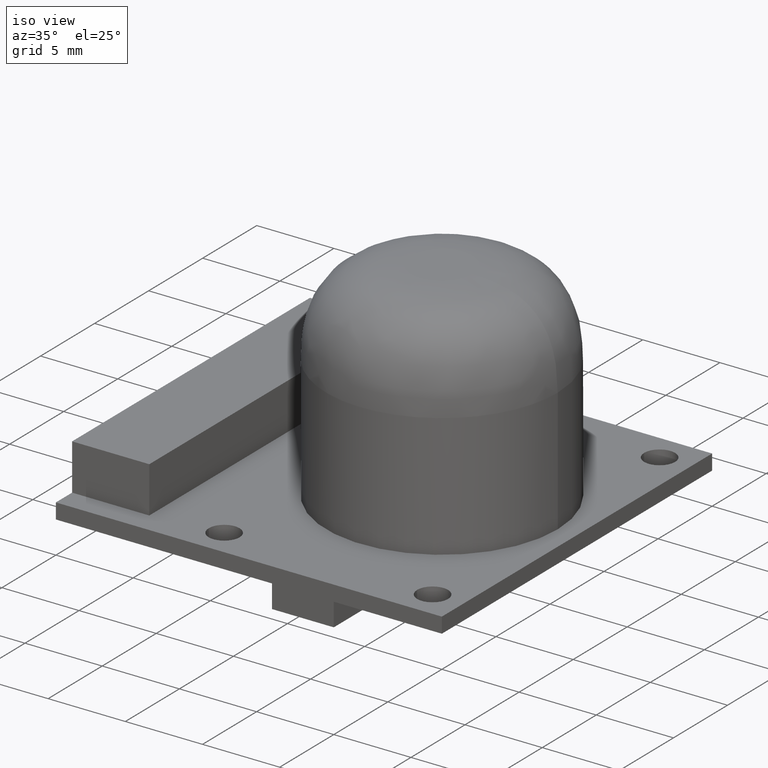
[diagram: clean part render]
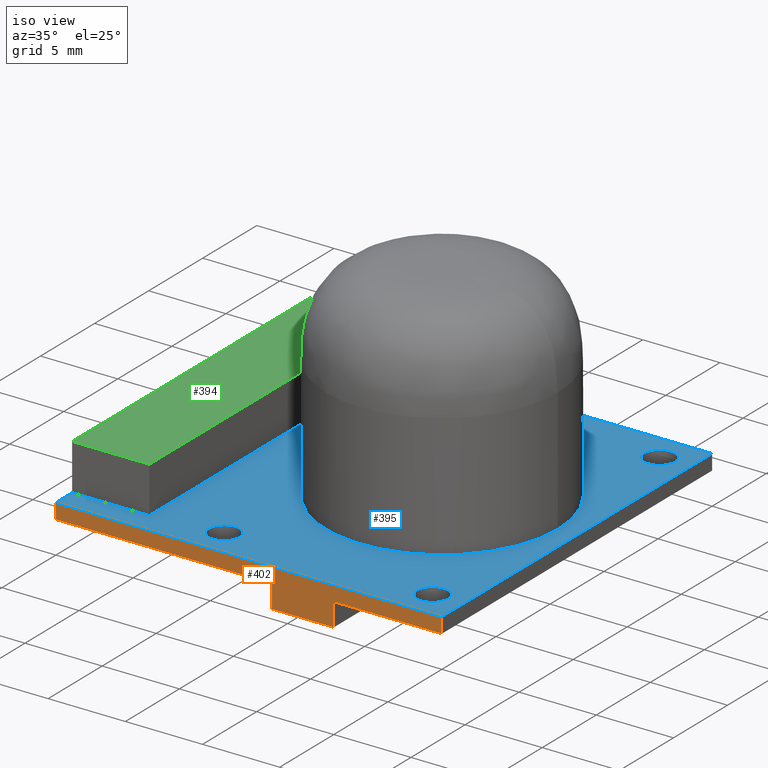
[diagram: same view with three faces highlighted in distinct colors, each labeled with its STEP entity id]
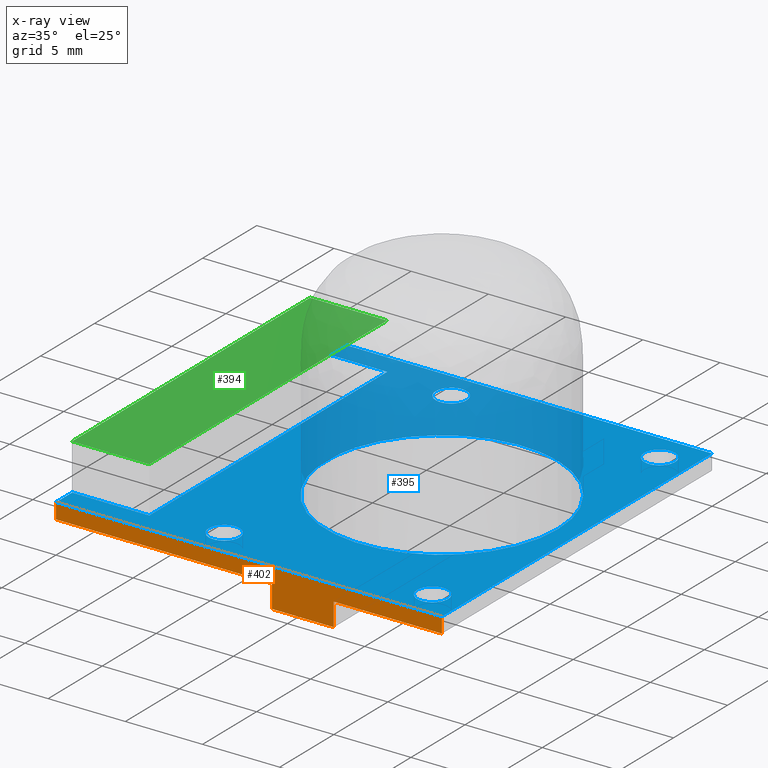
[diagram: x-ray of the same camera — body ghosted, the three highlighted faces saturated]
A machine part, iso view with three faces highlighted in distinct colors.
The next image is the same camera in x-ray (body ghosted, the three faces saturated) — at least one of them is partly hidden behind the body in this view.
Their STEP definitions:

[orange] entity #402 — the highlighted planar face has unit normal (0, -1, 0).
#36=LINE('',#706,#77);
#40=LINE('',#713,#81);
#43=LINE('',#719,#84);
#44=LINE('',#722,#85);
#59=LINE('',#757,#100);
#71=LINE('',#791,#112);
#72=LINE('',#793,#113);
#73=LINE('',#794,#114);
#77=VECTOR('',#461,10.);
#81=VECTOR('',#467,10.);
#84=VECTOR('',#472,10.);
#85=VECTOR('',#475,10.);
#100=VECTOR('',#504,10.);
#112=VECTOR('',#540,10.);
#113=VECTOR('',#543,10.);
#114=VECTOR('',#544,10.);
#132=PLANE('',#445);
#153=FACE_OUTER_BOUND('',#181,.T.);
#181=EDGE_LOOP('',(#361,#362,#363,#364,#365,#366,#367,#368));
#194=VERTEX_POINT('',#703);
#195=VERTEX_POINT('',#705);
#197=VERTEX_POINT('',#711);
#199=VERTEX_POINT('',#717);
#200=VERTEX_POINT('',#721);
#212=VERTEX_POINT('',#754);
#213=VERTEX_POINT('',#756);
#223=VERTEX_POINT('',#789);
#231=EDGE_CURVE('',#194,#195,#36,.T.);
#235=EDGE_CURVE('',#197,#194,#40,.T.);
#238=EDGE_CURVE('',#199,#197,#43,.T.);
#239=EDGE_CURVE('',#200,#195,#44,.T.);
#256=EDGE_CURVE('',#212,#213,#59,.T.);
#274=EDGE_CURVE('',#223,#213,#71,.T.);
#275=EDGE_CURVE('',#199,#223,#72,.T.);
#276=EDGE_CURVE('',#200,#212,#73,.T.);
#361=ORIENTED_EDGE('',*,*,#239,.T.);
#362=ORIENTED_EDGE('',*,*,#231,.F.);
#363=ORIENTED_EDGE('',*,*,#235,.F.);
#364=ORIENTED_EDGE('',*,*,#238,.F.);
#365=ORIENTED_EDGE('',*,*,#275,.T.);
#366=ORIENTED_EDGE('',*,*,#274,.T.);
#367=ORIENTED_EDGE('',*,*,#256,.F.);
#368=ORIENTED_EDGE('',*,*,#276,.F.);
#402=ADVANCED_FACE('',(#153),#132,.T.);
#445=AXIS2_PLACEMENT_3D('',#792,#541,#542);
#461=DIRECTION('',(7.40148683083438E-16,0.,1.));
#467=DIRECTION('',(-1.,0.,0.));
#472=DIRECTION('',(0.,0.,-1.));
#475=DIRECTION('',(1.,0.,0.));
#504=DIRECTION('',(1.,0.,0.));
#540=DIRECTION('',(0.,0.,1.));
#541=DIRECTION('center_axis',(0.,-1.,0.));
#542=DIRECTION('ref_axis',(1.,0.,0.));
#543=DIRECTION('',(1.,0.,0.));
#544=DIRECTION('',(0.,0.,1.));
#703=CARTESIAN_POINT('',(14.0000000000016,0.,-1.5));
#705=CARTESIAN_POINT('',(14.0000000000016,0.,0.));
#706=CARTESIAN_POINT('',(14.0000000000016,0.,-1.5));
#711=CARTESIAN_POINT('',(18.0000000000016,0.,-1.5));
#713=CARTESIAN_POINT('',(18.0000000000016,0.,-1.5));
#717=CARTESIAN_POINT('',(18.0000000000016,0.,0.));
#719=CARTESIAN_POINT('',(18.0000000000016,0.,1.5));
#721=CARTESIAN_POINT('',(0.,0.,0.));
#722=CARTESIAN_POINT('',(0.,0.,0.));
#754=CARTESIAN_POINT('',(0.,0.,1.));
#756=CARTESIAN_POINT('',(25.,0.,1.));
#757=CARTESIAN_POINT('',(0.,0.,1.));
#789=CARTESIAN_POINT('',(25.,0.,0.));
#791=CARTESIAN_POINT('',(25.,0.,0.));
#792=CARTESIAN_POINT('Origin',(0.,0.,0.));
#793=CARTESIAN_POINT('',(0.,0.,0.));
#794=CARTESIAN_POINT('',(0.,0.,0.));

[blue] entity #395 — the highlighted planar face has unit normal (0, 0, 1).
#17=FACE_BOUND('',#170,.T.);
#18=FACE_BOUND('',#171,.T.);
#19=FACE_BOUND('',#172,.T.);
#20=FACE_BOUND('',#173,.T.);
#21=FACE_BOUND('',#174,.T.);
#24=CIRCLE('',#421,7.5);
#27=CIRCLE('',#433,1.);
#28=CIRCLE('',#434,1.);
#29=CIRCLE('',#435,1.);
#30=CIRCLE('',#436,1.);
#47=LINE('',#733,#88);
#51=LINE('',#741,#92);
#54=LINE('',#747,#95);
#58=LINE('',#755,#99);
#59=LINE('',#757,#100);
#60=LINE('',#759,#101);
#61=LINE('',#761,#102);
#62=LINE('',#762,#103);
#88=VECTOR('',#484,10.);
#92=VECTOR('',#490,10.);
#95=VECTOR('',#495,10.);
#99=VECTOR('',#503,10.);
#100=VECTOR('',#504,10.);
#101=VECTOR('',#505,10.);
#102=VECTOR('',#506,10.);
#103=VECTOR('',#507,10.);
#129=PLANE('',#432);
#146=FACE_OUTER_BOUND('',#169,.T.);
#169=EDGE_LOOP('',(#320,#321,#322,#323,#324,#325,#326,#327));
#170=EDGE_LOOP('',(#328));
#171=EDGE_LOOP('',(#329));
#172=EDGE_LOOP('',(#330));
#173=EDGE_LOOP('',(#331));
#174=EDGE_LOOP('',(#332));
#191=VERTEX_POINT('',#696);
#204=VERTEX_POINT('',#731);
#205=VERTEX_POINT('',#732);
#208=VERTEX_POINT('',#740);
#210=VERTEX_POINT('',#746);
#212=VERTEX_POINT('',#754);
#213=VERTEX_POINT('',#756);
#214=VERTEX_POINT('',#758);
#215=VERTEX_POINT('',#760);
#216=VERTEX_POINT('',#763);
#217=VERTEX_POINT('',#765);
#218=VERTEX_POINT('',#767);
#219=VERTEX_POINT('',#769);
#228=EDGE_CURVE('',#191,#191,#24,.T.);
#244=EDGE_CURVE('',#204,#205,#47,.T.);
#248=EDGE_CURVE('',#205,#208,#51,.T.);
#251=EDGE_CURVE('',#208,#210,#54,.T.);
#255=EDGE_CURVE('',#210,#212,#58,.T.);
#256=EDGE_CURVE('',#212,#213,#59,.T.);
#257=EDGE_CURVE('',#213,#214,#60,.T.);
#258=EDGE_CURVE('',#214,#215,#61,.T.);
#259=EDGE_CURVE('',#215,#204,#62,.T.);
#260=EDGE_CURVE('',#216,#216,#27,.T.);
#261=EDGE_CURVE('',#217,#217,#28,.T.);
#262=EDGE_CURVE('',#218,#218,#29,.T.);
#263=EDGE_CURVE('',#219,#219,#30,.T.);
#320=ORIENTED_EDGE('',*,*,#244,.T.);
#321=ORIENTED_EDGE('',*,*,#248,.T.);
#322=ORIENTED_EDGE('',*,*,#251,.T.);
#323=ORIENTED_EDGE('',*,*,#255,.T.);
#324=ORIENTED_EDGE('',*,*,#256,.T.);
#325=ORIENTED_EDGE('',*,*,#257,.T.);
#326=ORIENTED_EDGE('',*,*,#258,.T.);
#327=ORIENTED_EDGE('',*,*,#259,.T.);
#328=ORIENTED_EDGE('',*,*,#260,.T.);
#329=ORIENTED_EDGE('',*,*,#261,.T.);
#330=ORIENTED_EDGE('',*,*,#262,.T.);
#331=ORIENTED_EDGE('',*,*,#263,.T.);
#332=ORIENTED_EDGE('',*,*,#228,.T.);
#395=ADVANCED_FACE('',(#146,#17,#18,#19,#20,#21),#129,.T.);
#421=AXIS2_PLACEMENT_3D('',#698,#455,#456);
#432=AXIS2_PLACEMENT_3D('',#753,#501,#502);
#433=AXIS2_PLACEMENT_3D('',#764,#508,#509);
#434=AXIS2_PLACEMENT_3D('',#766,#510,#511);
#435=AXIS2_PLACEMENT_3D('',#768,#512,#513);
#436=AXIS2_PLACEMENT_3D('',#770,#514,#515);
#455=DIRECTION('center_axis',(0.,0.,-1.));
#456=DIRECTION('ref_axis',(-1.,0.,0.));
#484=DIRECTION('',(1.,0.,0.));
#490=DIRECTION('',(0.,-1.,0.));
#495=DIRECTION('',(-1.,0.,0.));
#501=DIRECTION('center_axis',(0.,0.,1.));
#502=DIRECTION('ref_axis',(1.,0.,0.));
#503=DIRECTION('',(0.,-1.,0.));
#504=DIRECTION('',(1.,0.,0.));
#505=DIRECTION('',(0.,1.,0.));
#506=DIRECTION('',(-1.,0.,0.));
#507=DIRECTION('',(0.,-1.,0.));
#508=DIRECTION('center_axis',(0.,0.,-1.));
#509=DIRECTION('ref_axis',(1.,0.,0.));
#510=DIRECTION('center_axis',(0.,0.,-1.));
#511=DIRECTION('ref_axis',(1.,0.,0.));
#512=DIRECTION('center_axis',(0.,0.,-1.));
#513=DIRECTION('ref_axis',(1.,0.,0.));
#514=DIRECTION('center_axis',(0.,0.,-1.));
#515=DIRECTION('ref_axis',(1.,0.,0.));
#696=CARTESIAN_POINT('',(23.75,12.4999999999976,1.));
#698=CARTESIAN_POINT('Origin',(16.25,12.4999999999976,1.));
#731=CARTESIAN_POINT('',(0.,23.5,1.));
#732=CARTESIAN_POINT('',(5.,23.5,1.));
#733=CARTESIAN_POINT('',(8.75,23.5,1.));
#740=CARTESIAN_POINT('',(5.,1.5,1.));
#741=CARTESIAN_POINT('',(5.,7.,1.));
#746=CARTESIAN_POINT('',(0.,1.5,1.));
#747=CARTESIAN_POINT('',(6.25,1.5,1.));
#753=CARTESIAN_POINT('Origin',(12.5,12.5,1.));
#754=CARTESIAN_POINT('',(0.,0.,1.));
#755=CARTESIAN_POINT('',(0.,25.,1.));
#756=CARTESIAN_POINT('',(25.,0.,1.));
#757=CARTESIAN_POINT('',(0.,0.,1.));
#758=CARTESIAN_POINT('',(25.,25.,1.));
#759=CARTESIAN_POINT('',(25.,0.,1.));
#760=CARTESIAN_POINT('',(0.,25.,1.));
#761=CARTESIAN_POINT('',(25.,25.,1.));
#762=CARTESIAN_POINT('',(0.,25.,1.));
#763=CARTESIAN_POINT('',(21.9999999999984,22.9999999999967,1.));
#764=CARTESIAN_POINT('Origin',(22.9999999999984,22.9999999999967,1.));
#765=CARTESIAN_POINT('',(8.49999999999839,2.00000000000534,1.));
#766=CARTESIAN_POINT('Origin',(9.49999999999839,2.00000000000534,1.));
#767=CARTESIAN_POINT('',(22.0000000000016,2.00000000000057,1.));
#768=CARTESIAN_POINT('Origin',(23.0000000000016,2.00000000000057,1.));
#769=CARTESIAN_POINT('',(8.49999999999839,22.9999999999946,1.));
#770=CARTESIAN_POINT('Origin',(9.49999999999839,22.9999999999946,1.));

[green] entity #394 — the highlighted planar face has unit normal (0, 0, 1).
#49=LINE('',#737,#90);
#52=LINE('',#743,#93);
#55=LINE('',#749,#96);
#57=LINE('',#752,#98);
#90=VECTOR('',#486,10.);
#93=VECTOR('',#491,10.);
#96=VECTOR('',#496,10.);
#98=VECTOR('',#500,10.);
#128=PLANE('',#431);
#145=FACE_OUTER_BOUND('',#168,.T.);
#168=EDGE_LOOP('',(#316,#317,#318,#319));
#206=VERTEX_POINT('',#734);
#207=VERTEX_POINT('',#736);
#209=VERTEX_POINT('',#742);
#211=VERTEX_POINT('',#748);
#246=EDGE_CURVE('',#207,#206,#49,.T.);
#249=EDGE_CURVE('',#209,#207,#52,.T.);
#252=EDGE_CURVE('',#211,#209,#55,.T.);
#254=EDGE_CURVE('',#206,#211,#57,.T.);
#316=ORIENTED_EDGE('',*,*,#252,.T.);
#317=ORIENTED_EDGE('',*,*,#249,.T.);
#318=ORIENTED_EDGE('',*,*,#246,.T.);
#319=ORIENTED_EDGE('',*,*,#254,.T.);
#394=ADVANCED_FACE('',(#145),#128,.T.);
#431=AXIS2_PLACEMENT_3D('',#751,#498,#499);
#486=DIRECTION('',(-1.,0.,0.));
#491=DIRECTION('',(0.,1.,0.));
#496=DIRECTION('',(1.,0.,0.));
#498=DIRECTION('center_axis',(0.,0.,1.));
#499=DIRECTION('ref_axis',(1.,0.,0.));
#500=DIRECTION('',(0.,-1.,0.));
#734=CARTESIAN_POINT('',(0.,23.5,4.));
#736=CARTESIAN_POINT('',(5.,23.5,4.));
#737=CARTESIAN_POINT('',(0.,23.5,4.));
#742=CARTESIAN_POINT('',(5.,1.5,4.));
#743=CARTESIAN_POINT('',(5.,23.5,4.));
#748=CARTESIAN_POINT('',(0.,1.5,4.));
#749=CARTESIAN_POINT('',(5.,1.5,4.));
#751=CARTESIAN_POINT('Origin',(2.5,12.5,4.));
#752=CARTESIAN_POINT('',(0.,1.5,4.));